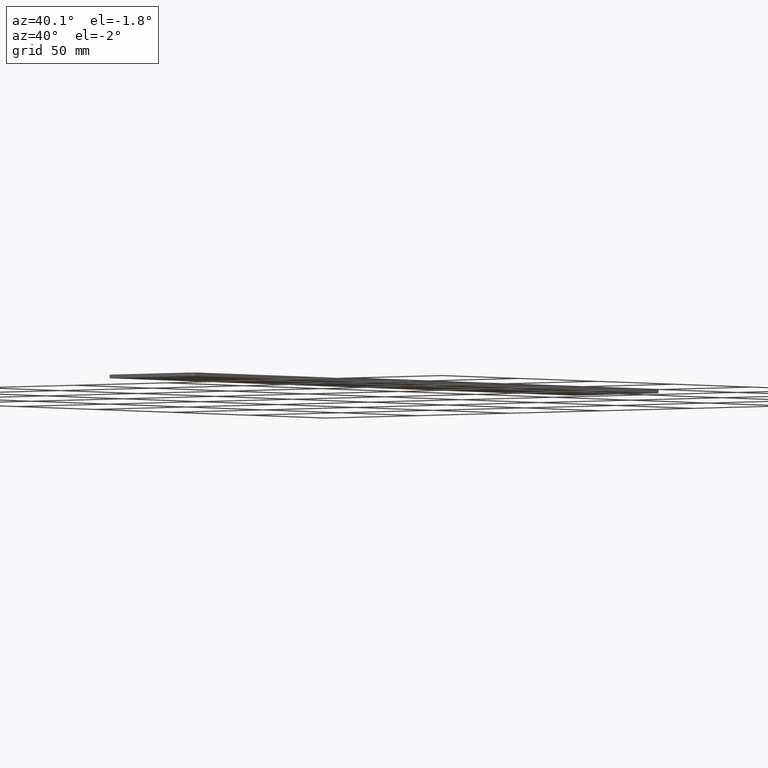
[diagram: clean part render]
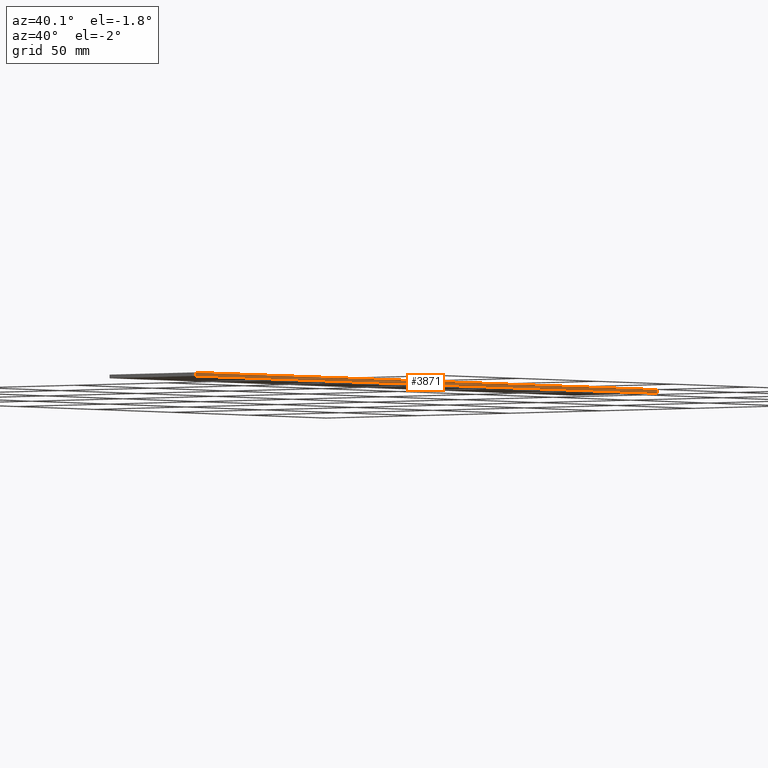
[diagram: same view with one face highlighted and labeled with its STEP entity id]
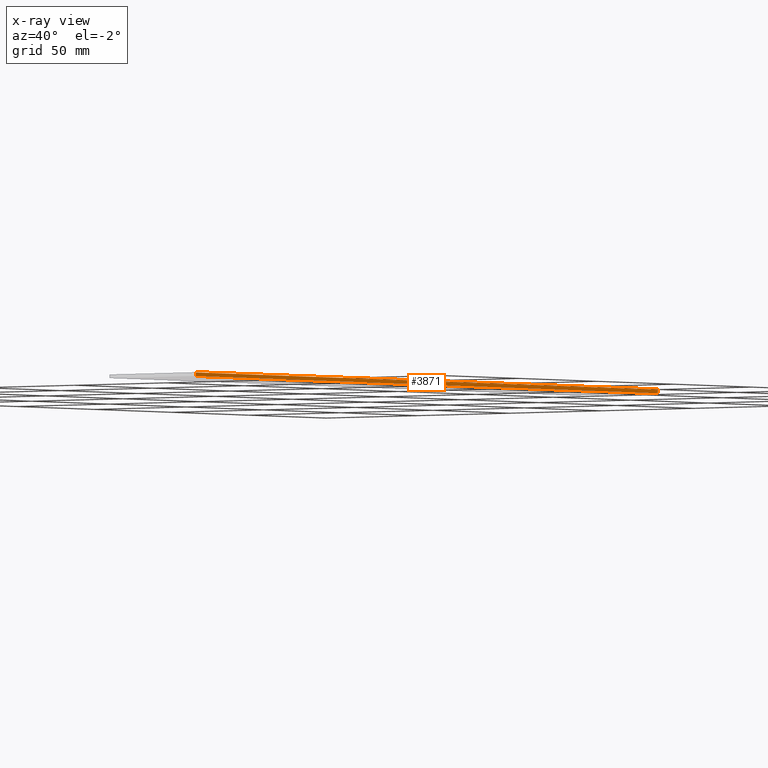
[diagram: x-ray of the same camera — body ghosted, the highlighted face saturated]
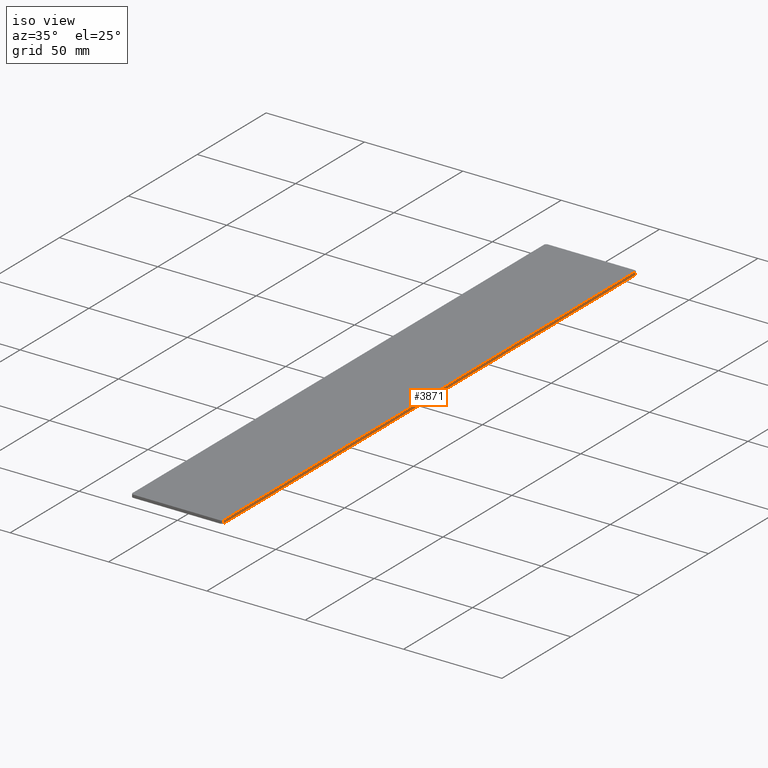
[diagram: same view with one face highlighted and labeled with its STEP entity id]
A machine part, auxiliary view. The second image highlights one B-rep face of the part: STEP entity #3871.
The next image is the same camera in x-ray: the body ghosted, the highlighted face saturated — about 0% of this face is hidden behind the body in this view.
A second angle (iso view) of the same face is appended — the face is thin or edge-on in the first view.
In plain terms, the highlighted planar face has unit normal (1, 0, -0).
Its self-contained STEP definition (entity closure, byte-faithful):
#287 = LINE ( 'NONE', #11065, #12520 ) ;
#313 = LINE ( 'NONE', #5620, #10920 ) ;
#433 = FACE_OUTER_BOUND ( 'NONE', #13009, .T. ) ;
#2065 = VERTEX_POINT ( 'NONE', #8858 ) ;
#2152 = EDGE_CURVE ( 'NONE', #8281, #3354, #287, .T. ) ;
#2348 = LINE ( 'NONE', #6664, #2526 ) ;
#2370 = EDGE_CURVE ( 'NONE', #3884, #2065, #4088, .T. ) ;
#2526 = VECTOR ( 'NONE', #10875, 1000.000000000000000 ) ;
#3178 = PLANE ( 'NONE',  #9264 ) ;
#3213 = ORIENTED_EDGE ( 'NONE', *, *, #2370, .T. ) ;
#3354 = VERTEX_POINT ( 'NONE', #10587 ) ;
#3871 = ADVANCED_FACE ( 'NONE', ( #433 ), #3178, .T. ) ;
#3884 = VERTEX_POINT ( 'NONE', #4157 ) ;
#3943 = ORIENTED_EDGE ( 'NONE', *, *, #12915, .F. ) ;
#4008 = CARTESIAN_POINT ( 'NONE',  ( 23.25000000000001400, -149.2999999999999500, 0.0000000000000000000 ) ) ;
#4088 = LINE ( 'NONE', #4008, #7502 ) ;
#4157 = CARTESIAN_POINT ( 'NONE',  ( 23.25000000000001400, -149.2999999999999500, 1.500000000000000000 ) ) ;
#4898 = ORIENTED_EDGE ( 'NONE', *, *, #6361, .T. ) ;
#5620 = CARTESIAN_POINT ( 'NONE',  ( 23.24999999999997500, 150.5000000000000000, 0.0000000000000000000 ) ) ;
#6344 = DIRECTION ( 'NONE',  ( -1.267904201710623000E-016, 1.000000000000000000, 0.0000000000000000000 ) ) ;
#6361 = EDGE_CURVE ( 'NONE', #3354, #3884, #2348, .T. ) ;
#6664 = CARTESIAN_POINT ( 'NONE',  ( 23.24999999999997500, 150.5000000000000000, 1.500000000000000000 ) ) ;
#7502 = VECTOR ( 'NONE', #13413, 1000.000000000000000 ) ;
#8281 = VERTEX_POINT ( 'NONE', #8893 ) ;
#8442 = CARTESIAN_POINT ( 'NONE',  ( 23.24999999999997500, 150.5000000000000000, 1.500000000000000000 ) ) ;
#8858 = CARTESIAN_POINT ( 'NONE',  ( 23.25000000000001400, -149.2999999999999500, 0.0000000000000000000 ) ) ;
#8893 = CARTESIAN_POINT ( 'NONE',  ( 23.24999999999997500, 149.2999999999999800, 0.0000000000000000000 ) ) ;
#9264 = AXIS2_PLACEMENT_3D ( 'NONE', #8442, #11499, #6344 ) ;
#9769 = DIRECTION ( 'NONE',  ( 1.267904201710623000E-016, -1.000000000000000000, 0.0000000000000000000 ) ) ;
#9883 = ORIENTED_EDGE ( 'NONE', *, *, #2152, .T. ) ;
#10587 = CARTESIAN_POINT ( 'NONE',  ( 23.24999999999997500, 149.2999999999999800, 1.500000000000000000 ) ) ;
#10875 = DIRECTION ( 'NONE',  ( 1.267904201710623000E-016, -1.000000000000000000, 0.0000000000000000000 ) ) ;
#10920 = VECTOR ( 'NONE', #9769, 1000.000000000000000 ) ;
#11065 = CARTESIAN_POINT ( 'NONE',  ( 23.24999999999997500, 149.2999999999999800, 1.500000000000000000 ) ) ;
#11499 = DIRECTION ( 'NONE',  ( 1.000000000000000000, 1.267904201710623000E-016, -0.0000000000000000000 ) ) ;
#12520 = VECTOR ( 'NONE', #13090, 1000.000000000000000 ) ;
#12915 = EDGE_CURVE ( 'NONE', #8281, #2065, #313, .T. ) ;
#13009 = EDGE_LOOP ( 'NONE', ( #4898, #3213, #3943, #9883 ) ) ;
#13090 = DIRECTION ( 'NONE',  ( 0.0000000000000000000, -0.0000000000000000000, 1.000000000000000000 ) ) ;
#13413 = DIRECTION ( 'NONE',  ( 0.0000000000000000000, 0.0000000000000000000, -1.000000000000000000 ) ) ;